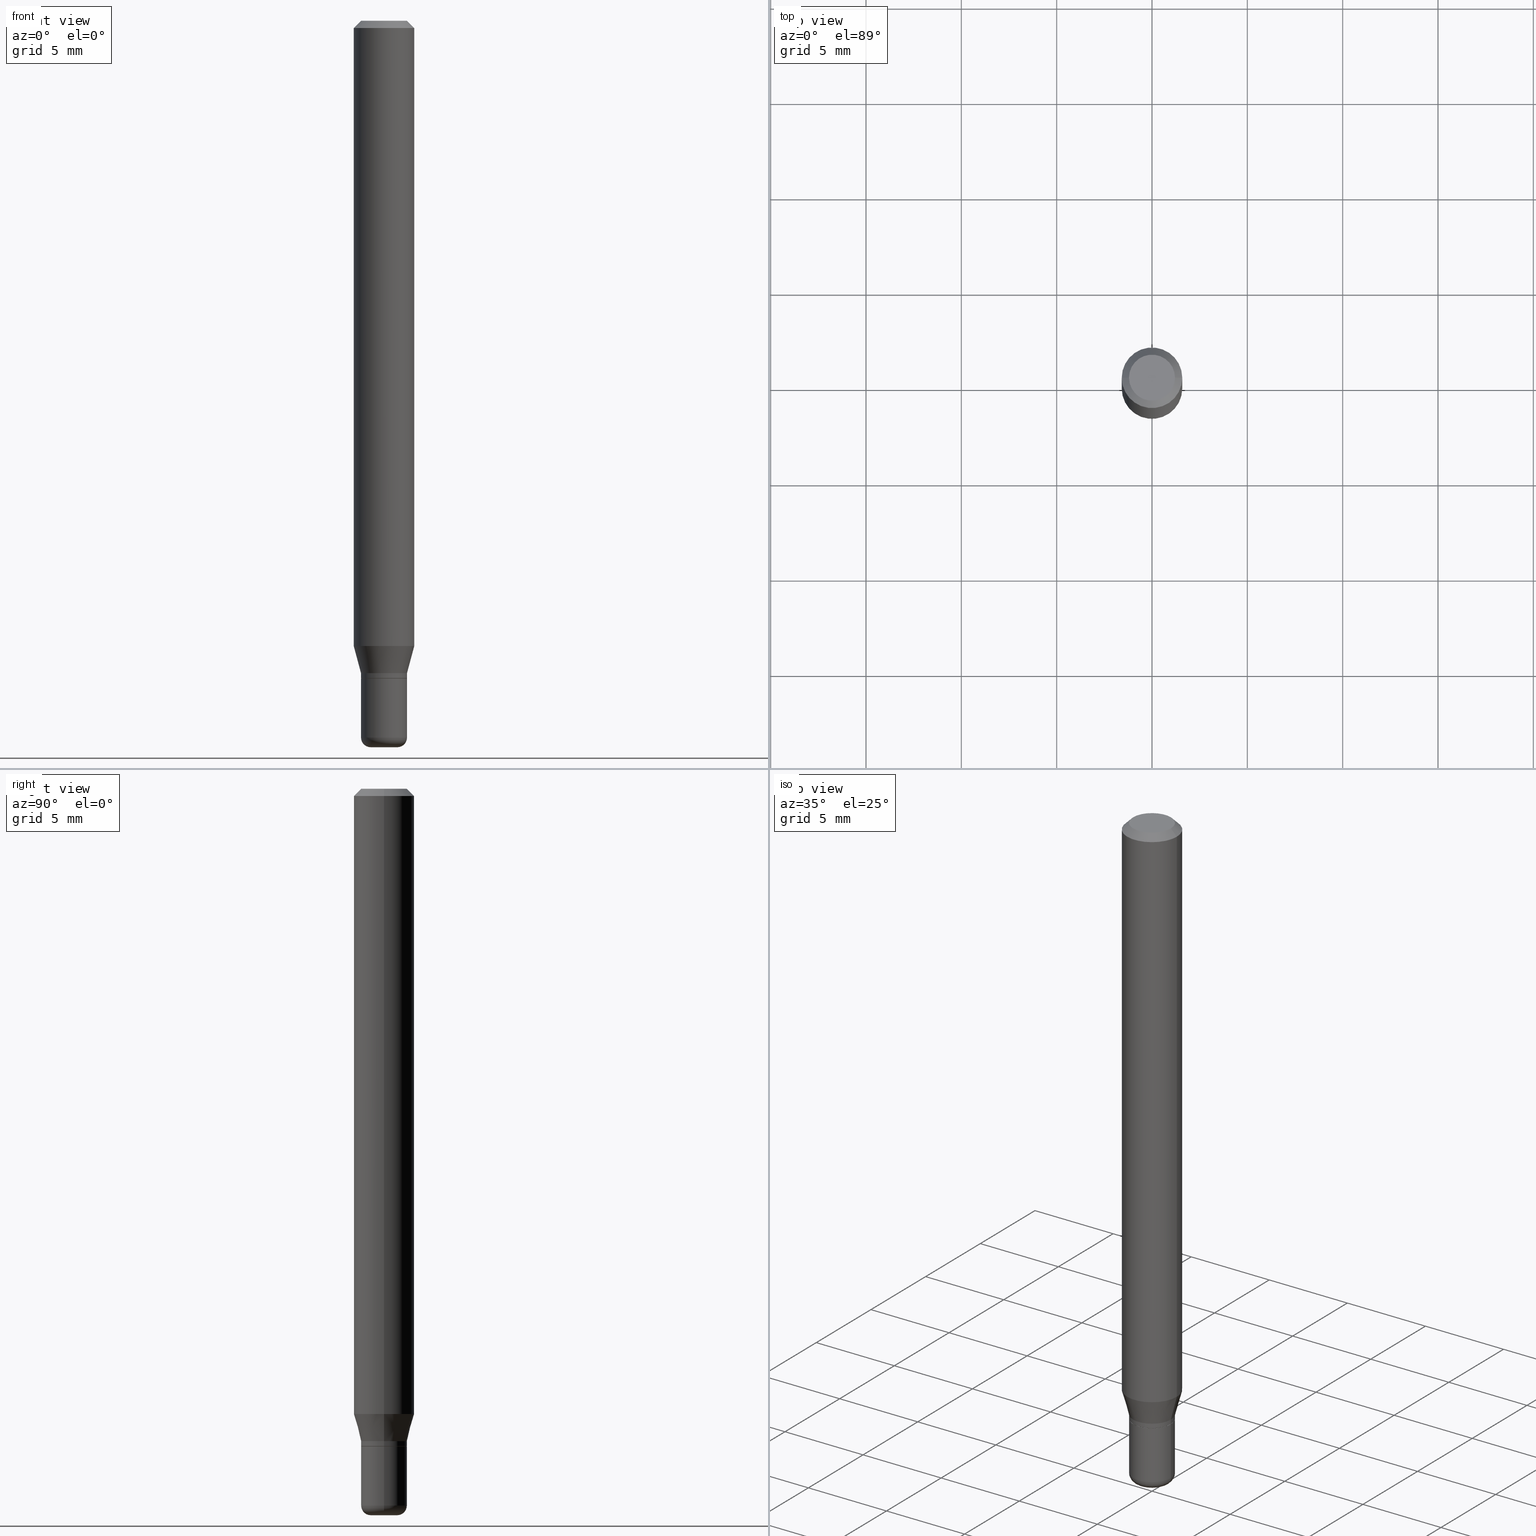
[diagram: canonical four-view strip — front | top / right | iso, engineering-drawing reading convention]
A machine part, canonical four-view strip (front | top / right | iso — engineering-drawing reading convention). The complete STEP part file that produces these views, byte-faithful:
ISO-10303-21;
HEADER;
FILE_DESCRIPTION (( 'STEP AP203' ),
    '1' );
FILE_NAME ('08730.STEP',
    '2024-02-29T20:39:32',
    ( '' ),
    ( '' ),
    'SwSTEP 2.0',
    'SolidWorks 2023',
    '' );
FILE_SCHEMA (( 'CONFIG_CONTROL_DESIGN' ));
ENDSEC;

DATA;
#1 = VERTEX_POINT ( 'NONE', #51 ) ;
#2 = CARTESIAN_POINT ( 'NONE',  ( 3.157147274436263643E-29, -4.507569577168099864E-15, -1.291019237886467108 ) ) ;
#3 = PERSON_AND_ORGANIZATION ( #485, #305 ) ;
#4 = ADVANCED_FACE ( 'NONE', ( #223 ), #147, .F. ) ;
#5 = VERTEX_POINT ( 'NONE', #371 ) ;
#6 = CARTESIAN_POINT ( 'NONE',  ( 3.619293833154002365E-29, -5.167392381487854879E-15, -1.479999999999999982 ) ) ;
#7 = VECTOR ( 'NONE', #515, 39.37007874015748143 ) ;
#8 = FACE_OUTER_BOUND ( 'NONE', #235, .T. ) ;
#9 = ADVANCED_FACE ( 'NONE', ( #445 ), #11, .T. ) ;
#10 = DIRECTION ( 'NONE',  ( -2.445468806185136877E-29, 3.491481338843145188E-15, 1.000000000000000000 ) ) ;
#11 = CYLINDRICAL_SURFACE ( 'NONE', #173, 0.04750000000000000749 ) ;
#12 = CIRCLE ( 'NONE', #302, 0.04749999999999999362 ) ;
#13 = AXIS2_PLACEMENT_3D ( 'NONE', #58, #14, #183 ) ;
#14 = DIRECTION ( 'NONE',  ( -2.445468806185136597E-29, 3.491481338843145583E-15, 1.000000000000000000 ) ) ;
#15 = LOCAL_TIME ( 15, 39, 32.00000000000000000, #280 ) ;
#16 = EDGE_CURVE ( 'NONE', #499, #326, #12, .T. ) ;
#17 = ORIENTED_EDGE ( 'NONE', *, *, #114, .T. ) ;
#18 = CARTESIAN_POINT ( 'NONE',  ( 3.668203209277632395E-31, -5.237222008264614861E-17, -0.01499999999999970281 ) ) ;
#19 = DIRECTION ( 'NONE',  ( 1.000000000000000000, -6.982962677686258033E-15, 0.000000000000000000 ) ) ;
#20 = AXIS2_PLACEMENT_3D ( 'NONE', #297, #103, #372 ) ;
#21 = EDGE_CURVE ( 'NONE', #518, #510, #458, .T. ) ;
#22 = CARTESIAN_POINT ( 'NONE',  ( 0.02749999999999999667, -5.359423855124228160E-15, -1.479999999999999982 ) ) ;
#23 = DIRECTION ( 'NONE',  ( 1.000000000000000000, -6.982962677686260400E-15, 0.000000000000000000 ) ) ;
#24 = PRODUCT_DEFINITION ( 'UNKNOWN', '', #343, #339 ) ;
#25 = ORIENTED_EDGE ( 'NONE', *, *, #300, .F. ) ;
#26 = PRODUCT ( '08730', '08730', '', ( #120 ) ) ;
#27 = PERSON_AND_ORGANIZATION ( #485, #305 ) ;
#28 = AXIS2_PLACEMENT_3D ( 'NONE', #189, #418, #196 ) ;
#29 = CARTESIAN_POINT ( 'NONE',  ( 3.319723904396323737E-29, -4.739685917479570727E-15, -1.357500000000000151 ) ) ;
#30 = CC_DESIGN_SECURITY_CLASSIFICATION ( #508, ( #343 ) ) ;
#31 = ORIENTED_EDGE ( 'NONE', *, *, #308, .T. ) ;
#32 = ADVANCED_FACE ( 'NONE', ( #180 ), #453, .F. ) ;
#33 = APPLICATION_PROTOCOL_DEFINITION ( 'international standard', 'config_control_design', 1994, #66 ) ;
#34 = CARTESIAN_POINT ( 'NONE',  ( -0.04700000000000000705, -4.403081604498212142E-15, -1.357500000000000151 ) ) ;
#35 = DIRECTION ( 'NONE',  ( -2.445468806185136597E-29, 3.491481338843145583E-15, 1.000000000000000000 ) ) ;
#36 = ORIENTED_EDGE ( 'NONE', *, *, #498, .T. ) ;
#37 = DIRECTION ( 'NONE',  ( 1.000000000000000000, -6.982962677686258033E-15, 0.000000000000000000 ) ) ;
#38 = EDGE_LOOP ( 'NONE', ( #150, #393, #366, #504 ) ) ;
#39 = LINE ( 'NONE', #307, #420 ) ;
#40 = EDGE_CURVE ( 'NONE', #415, #47, #73, .T. ) ;
#41 = APPROVAL_STATUS ( 'not_yet_approved' ) ;
#42 = AXIS2_PLACEMENT_3D ( 'NONE', #330, #184, #186 ) ;
#43 = CIRCLE ( 'NONE', #482, 0.04749999999999999362 ) ;
#44 = CARTESIAN_POINT ( 'NONE',  ( 0.06250000000000000000, -4.944004744523489955E-15, -1.291019237886467108 ) ) ;
#45 = ORIENTED_EDGE ( 'NONE', *, *, #59, .F. ) ;
#46 = ORIENTED_EDGE ( 'NONE', *, *, #60, .T. ) ;
#47 = VERTEX_POINT ( 'NONE', #493 ) ;
#48 = EDGE_LOOP ( 'NONE', ( #45, #354, #91, #193 ) ) ;
#49 = DIRECTION ( 'NONE',  ( -0.7071067811865479058, 2.468850131082261005E-15, -0.7071067811865471286 ) ) ;
#50 = AXIS2_PLACEMENT_3D ( 'NONE', #402, #291, #322 ) ;
#51 = CARTESIAN_POINT ( 'NONE',  ( 0.04750000000000000749, -4.035134999187568762E-16, 2.731847993664288856E-16 ) ) ;
#52 = CC_DESIGN_PERSON_AND_ORGANIZATION_ASSIGNMENT ( #351, #161, ( #343 ) ) ;
#53 = CYLINDRICAL_SURFACE ( 'NONE', #13, 0.06250000000000000000 ) ;
#54 = CARTESIAN_POINT ( 'NONE',  ( 0.000000000000000000, 0.000000000000000000, 0.000000000000000000 ) ) ;
#55 = DIMENSIONAL_EXPONENTS ( 1.000000000000000000, 0.000000000000000000, 0.000000000000000000, 0.000000000000000000, 0.000000000000000000, 0.000000000000000000, 0.000000000000000000 ) ;
#56 = CARTESIAN_POINT ( 'NONE',  ( 0.04750000000000002137, -5.034716090611815085E-15, -1.347000000000000197 ) ) ;
#57 = EDGE_LOOP ( 'NONE', ( #242, #355, #425, #321 ) ) ;
#58 = CARTESIAN_POINT ( 'NONE',  ( 0.000000000000000000, 0.000000000000000000, 0.000000000000000000 ) ) ;
#59 = EDGE_CURVE ( 'NONE', #1, #82, #448, .T. ) ;
#60 = EDGE_CURVE ( 'NONE', #447, #415, #407, .T. ) ;
#61 = AXIS2_PLACEMENT_3D ( 'NONE', #156, #313, #203 ) ;
#62 = DIRECTION ( 'NONE',  ( -2.445468806185136597E-29, 3.491481338843145583E-15, 1.000000000000000000 ) ) ;
#63 = DIRECTION ( 'NONE',  ( -2.445468806185136597E-29, 3.491481338843145583E-15, 1.000000000000000000 ) ) ;
#64 = CIRCLE ( 'NONE', #236, 0.04750000000000002137 ) ;
#65 = CIRCLE ( 'NONE', #224, 0.04750000000000000749 ) ;
#66 = APPLICATION_CONTEXT ( 'configuration controlled 3d designs of mechanical parts and assemblies' ) ;
#67 = DIRECTION ( 'NONE',  ( -2.445468806185136597E-29, 3.491481338843145583E-15, 1.000000000000000000 ) ) ;
#68 = CARTESIAN_POINT ( 'NONE',  ( 0.04750000000000002137, -5.499083108677952390E-15, -1.479999999999999982 ) ) ;
#69 = ORIENTED_EDGE ( 'NONE', *, *, #226, .F. ) ;
#70 = CARTESIAN_POINT ( 'NONE',  ( 3.582686580359766038E-29, -5.359686688179453325E-15, -1.500000000000000222 ) ) ;
#71 = CC_DESIGN_DATE_AND_TIME_ASSIGNMENT ( #430, #87, ( #508 ) ) ;
#72 = EDGE_LOOP ( 'NONE', ( #238, #17, #396, #350 ) ) ;
#73 = CIRCLE ( 'NONE', #145, 0.04750000000000002137 ) ;
#74 = AXIS2_PLACEMENT_3D ( 'NONE', #29, #507, #85 ) ;
#75 = CALENDAR_DATE ( 2024, 29, 2 ) ;
#76 = APPROVAL_PERSON_ORGANIZATION ( #252, #172, #417 ) ;
#77 = FACE_OUTER_BOUND ( 'NONE', #123, .T. ) ;
#78 = VERTEX_POINT ( 'NONE', #327 ) ;
#79 = PERSON_AND_ORGANIZATION ( #485, #305 ) ;
#80 = DIRECTION ( 'NONE',  ( 1.000000000000000000, -6.982962677686279332E-15, 0.000000000000000000 ) ) ;
#81 = ORIENTED_EDGE ( 'NONE', *, *, #414, .F. ) ;
#82 = VERTEX_POINT ( 'NONE', #260 ) ;
#83 = DIRECTION ( 'NONE',  ( -2.445468806185136597E-29, 3.491481338843145583E-15, 1.000000000000000000 ) ) ;
#84 = EDGE_CURVE ( 'NONE', #510, #499, #401, .T. ) ;
#85 = DIRECTION ( 'NONE',  ( 1.000000000000000000, -6.982962677686269866E-15, 0.000000000000000000 ) ) ;
#86 = ORIENTED_EDGE ( 'NONE', *, *, #318, .T. ) ;
#87 = DATE_TIME_ROLE ( 'classification_date' ) ;
#88 = ADVANCED_FACE ( 'NONE', ( #227 ), #500, .T. ) ;
#89 = CIRCLE ( 'NONE', #380, 0.06250000000000000000 ) ;
#90 = DIRECTION ( 'NONE',  ( 1.000000000000000000, -6.982962677686258033E-15, 0.000000000000000000 ) ) ;
#91 = ORIENTED_EDGE ( 'NONE', *, *, #332, .T. ) ;
#92 = APPLICATION_CONTEXT ( 'configuration controlled 3d designs of mechanical parts and assemblies' ) ;
#93 = CARTESIAN_POINT ( 'NONE',  ( 3.294046481931379390E-29, -4.703025363421717574E-15, -1.347000000000000197 ) ) ;
#94 = EDGE_LOOP ( 'NONE', ( #294, #214 ) ) ;
#95 = CARTESIAN_POINT ( 'NONE',  ( 3.668203209277632395E-31, -5.237222008264614861E-17, -0.01499999999999970281 ) ) ;
#96 = CYLINDRICAL_SURFACE ( 'NONE', #341, 0.04750000000000001443 ) ;
#97 = ORIENTED_EDGE ( 'NONE', *, *, #361, .T. ) ;
#98 = ADVANCED_FACE ( 'NONE', ( #177 ), #113, .T. ) ;
#99 = CARTESIAN_POINT ( 'NONE',  ( 3.294046481931379390E-29, -4.703025363421717574E-15, -1.347000000000000197 ) ) ;
#100 = DIRECTION ( 'NONE',  ( -2.445468806185136597E-29, 3.491481338843145583E-15, 1.000000000000000000 ) ) ;
#101 = AXIS2_PLACEMENT_3D ( 'NONE', #264, #62, #107 ) ;
#102 = ORIENTED_EDGE ( 'NONE', *, *, #514, .T. ) ;
#103 = DIRECTION ( 'NONE',  ( -2.438088387897960049E-29, 3.491481338843145188E-15, 1.000000000000000000 ) ) ;
#104 = DIRECTION ( 'NONE',  ( 1.000000000000000000, -6.982962677686266711E-15, 4.852736867747365086E-29 ) ) ;
#105 = APPROVAL_STATUS ( 'not_yet_approved' ) ;
#106 = EDGE_CURVE ( 'NONE', #197, #163, #225, .T. ) ;
#107 = DIRECTION ( 'NONE',  ( 1.000000000000000000, -6.982962677686269866E-15, 0.000000000000000000 ) ) ;
#108 = AXIS2_PLACEMENT_3D ( 'NONE', #386, #475, #80 ) ;
#109 = CARTESIAN_POINT ( 'NONE',  ( -0.04750000000000001443, 3.375077994860476908E-16, -2.336494167871080961E-30 ) ) ;
#110 = EDGE_CURVE ( 'NONE', #163, #47, #457, .T. ) ;
#111 =( LENGTH_UNIT ( ) NAMED_UNIT ( * ) SI_UNIT ( $, .METRE. ) );
#112 = FACE_OUTER_BOUND ( 'NONE', #484, .T. ) ;
#113 = CONICAL_SURFACE ( 'NONE', #101, 0.04700000000000000705, 0.7853981633972775267 ) ;
#114 = EDGE_CURVE ( 'NONE', #47, #381, #412, .T. ) ;
#115 = FACE_OUTER_BOUND ( 'NONE', #48, .T. ) ;
#116 = EDGE_LOOP ( 'NONE', ( #383, #241 ) ) ;
#117 = CARTESIAN_POINT ( 'NONE',  ( 0.06250000000000000000, -4.364351673553916694E-16, 3.047610484872459871E-30 ) ) ;
#118 = EDGE_LOOP ( 'NONE', ( #167, #211, #468, #69 ) ) ;
#119 = AXIS2_PLACEMENT_3D ( 'NONE', #455, #191, #502 ) ;
#120 = MECHANICAL_CONTEXT ( 'NONE', #66, 'mechanical' ) ;
#121 = DIRECTION ( 'NONE',  ( -2.445468806185136597E-29, 3.491481338843145583E-15, 1.000000000000000000 ) ) ;
#122 = ADVANCED_FACE ( 'NONE', ( #295 ), #53, .T. ) ;
#123 = EDGE_LOOP ( 'NONE', ( #440, #444, #46, #254 ) ) ;
#124 = EDGE_CURVE ( 'NONE', #447, #163, #207, .T. ) ;
#125 = CARTESIAN_POINT ( 'NONE',  ( -0.04750000000000000749, -4.400432377324100941E-15, -1.356999999999999984 ) ) ;
#126 = ORIENTED_EDGE ( 'NONE', *, *, #361, .F. ) ;
#127 = CC_DESIGN_PERSON_AND_ORGANIZATION_ASSIGNMENT ( #513, #199, ( #26 ) ) ;
#128 = FACE_OUTER_BOUND ( 'NONE', #38, .T. ) ;
#129 = ORIENTED_EDGE ( 'NONE', *, *, #106, .T. ) ;
#130 = ORIENTED_EDGE ( 'NONE', *, *, #300, .T. ) ;
#131 = COORDINATED_UNIVERSAL_TIME_OFFSET ( 5, 0, .BEHIND. ) ;
#132 = CLOSED_SHELL ( 'NONE', ( #285, #221, #32, #9, #438, #152 ) ) ;
#133 = VECTOR ( 'NONE', #169, 39.37007874015748143 ) ;
#134 = AXIS2_PLACEMENT_3D ( 'NONE', #22, #461, #188 ) ;
#135 = APPROVAL_DATE_TIME ( #141, #439 ) ;
#136 = CC_DESIGN_DATE_AND_TIME_ASSIGNMENT ( #158, #323, ( #24 ) ) ;
#137 = LINE ( 'NONE', #262, #460 ) ;
#138 = DIRECTION ( 'NONE',  ( -0.2588190451025204619, 5.211531920934543942E-15, 0.9659258262890684232 ) ) ;
#139 = CONICAL_SURFACE ( 'NONE', #277, 0.04750000000000002137, 0.2617993877991491303 ) ;
#140 = DIRECTION ( 'NONE',  ( -2.445468806185136597E-29, 3.491481338843145583E-15, 1.000000000000000000 ) ) ;
#141 = DATE_AND_TIME ( #397, #194 ) ;
#142 = DIRECTION ( 'NONE',  ( 2.438088387897960049E-29, -3.491481338843145188E-15, -1.000000000000000000 ) ) ;
#143 = CARTESIAN_POINT ( 'NONE',  ( 3.319723904396323737E-29, -4.739685917479570727E-15, -1.357500000000000151 ) ) ;
#144 = DIRECTION ( 'NONE',  ( 1.000000000000000000, -6.982962677686261977E-15, 0.000000000000000000 ) ) ;
#145 = AXIS2_PLACEMENT_3D ( 'NONE', #99, #220, #451 ) ;
#146 = AXIS2_PLACEMENT_3D ( 'NONE', #348, #162, #234 ) ;
#147 = PLANE ( 'NONE',  #20 ) ;
#148 = EDGE_CURVE ( 'NONE', #415, #347, #39, .T. ) ;
#149 = UNCERTAINTY_MEASURE_WITH_UNIT (LENGTH_MEASURE( 1.000000000000000082E-05 ), #154, 'distance_accuracy_value', 'NONE');
#150 = ORIENTED_EDGE ( 'NONE', *, *, #268, .T. ) ;
#151 = AXIS2_PLACEMENT_3D ( 'NONE', #435, #83, #399 ) ;
#152 = ADVANCED_FACE ( 'NONE', ( #112 ), #228, .F. ) ;
#153 = CC_DESIGN_APPROVAL ( #172, ( #24 ) ) ;
#154 =( CONVERSION_BASED_UNIT ( 'INCH', #272 ) LENGTH_UNIT ( ) NAMED_UNIT ( #55 ) );
#155 = PERSON_AND_ORGANIZATION ( #485, #305 ) ;
#156 = CARTESIAN_POINT ( 'NONE',  ( -0.02749999999999999667, -4.971993129153827548E-15, -1.479999999999999982 ) ) ;
#157 = EDGE_CURVE ( 'NONE', #197, #282, #392, .T. ) ;
#158 = DATE_AND_TIME ( #75, #15 ) ;
#159 = ORIENTED_EDGE ( 'NONE', *, *, #60, .F. ) ;
#160 = AXIS2_PLACEMENT_3D ( 'NONE', #267, #140, #19 ) ;
#161 = PERSON_AND_ORGANIZATION_ROLE ( 'creator' ) ;
#162 = DIRECTION ( 'NONE',  ( -2.445468806185136597E-29, 3.491481338843145583E-15, 1.000000000000000000 ) ) ;
#163 = VERTEX_POINT ( 'NONE', #125 ) ;
#164 = MANIFOLD_SOLID_BREP ( 'Body-Move/Copy2[2]', #379 ) ;
#165 = PERSON_AND_ORGANIZATION_ROLE ( 'classification_officer' ) ;
#166 = CARTESIAN_POINT ( 'NONE',  ( 3.668203209277632395E-31, -5.237222008264614861E-17, -0.01499999999999970281 ) ) ;
#167 = ORIENTED_EDGE ( 'NONE', *, *, #377, .F. ) ;
#168 = PERSON_AND_ORGANIZATION_ROLE ( 'creator' ) ;
#169 = DIRECTION ( 'NONE',  ( -2.445468806185136877E-29, 3.491481338843145188E-15, 1.000000000000000000 ) ) ;
#170 = ORIENTED_EDGE ( 'NONE', *, *, #124, .T. ) ;
#171 = DIRECTION ( 'NONE',  ( 1.000000000000000000, -6.982962677686266711E-15, 0.000000000000000000 ) ) ;
#172 = APPROVAL ( #41, 'UNSPECIFIED' ) ;
#173 = AXIS2_PLACEMENT_3D ( 'NONE', #263, #63, #369 ) ;
#174 = AXIS2_PLACEMENT_3D ( 'NONE', #443, #178, #362 ) ;
#175 = DIRECTION ( 'NONE',  ( 1.000000000000000000, -6.982962677686266711E-15, 4.876176775795935793E-29 ) ) ;
#176 = DIRECTION ( 'NONE',  ( -2.445468806185136597E-29, 3.491481338843145583E-15, 1.000000000000000000 ) ) ;
#177 = FACE_OUTER_BOUND ( 'NONE', #516, .T. ) ;
#178 = DIRECTION ( 'NONE',  ( -2.445468806185136597E-29, 3.491481338843145583E-15, 1.000000000000000000 ) ) ;
#179 = ADVANCED_FACE ( 'NONE', ( #115 ), #337, .T. ) ;
#180 = FACE_OUTER_BOUND ( 'NONE', #116, .T. ) ;
#181 = ADVANCED_BREP_SHAPE_REPRESENTATION ( '08730', ( #328, #164, #316 ), #411 ) ;
#182 = CIRCLE ( 'NONE', #230, 0.06250000000000000000 ) ;
#183 = DIRECTION ( 'NONE',  ( 1.000000000000000000, -6.982962677686266711E-15, 4.876176775795935793E-29 ) ) ;
#184 = DIRECTION ( 'NONE',  ( 2.438088387897960049E-29, -3.491481338843145188E-15, -1.000000000000000000 ) ) ;
#185 = DIRECTION ( 'NONE',  ( -2.445468806185136597E-29, 3.491481338843145583E-15, 1.000000000000000000 ) ) ;
#186 = DIRECTION ( 'NONE',  ( -1.000000000000000000, 6.982962677686265922E-15, -4.876176775795935793E-29 ) ) ;
#187 = AXIS2_PLACEMENT_3D ( 'NONE', #245, #35, #253 ) ;
#188 = DIRECTION ( 'NONE',  ( 1.000000000000000000, -6.982962677686275388E-15, 0.000000000000000000 ) ) ;
#189 = CARTESIAN_POINT ( 'NONE',  ( 3.668203209277632395E-31, -5.237222008264614861E-17, -0.01499999999999970281 ) ) ;
#190 = EDGE_CURVE ( 'NONE', #324, #510, #374, .T. ) ;
#191 = DIRECTION ( 'NONE',  ( -2.445468806185136597E-29, 3.491481338843145583E-15, 1.000000000000000000 ) ) ;
#192 = DIRECTION ( 'NONE',  ( 1.000000000000000000, -6.982962677686265922E-15, 4.876176775795935793E-29 ) ) ;
#193 = ORIENTED_EDGE ( 'NONE', *, *, #249, .F. ) ;
#194 = LOCAL_TIME ( 15, 39, 32.00000000000000000, #370 ) ;
#195 = DIRECTION ( 'NONE',  ( 0.000000000000000000, 0.000000000000000000, 1.000000000000000000 ) ) ;
#196 = DIRECTION ( 'NONE',  ( -1.000000000000000000, 6.982962677686266711E-15, 0.000000000000000000 ) ) ;
#197 = VERTEX_POINT ( 'NONE', #34 ) ;
#198 = ADVANCED_FACE ( 'NONE', ( #469 ), #312, .T. ) ;
#199 = PERSON_AND_ORGANIZATION_ROLE ( 'design_owner' ) ;
#200 = CARTESIAN_POINT ( 'NONE',  ( 0.04749999999999999362, -5.071376644669668238E-15, -1.357500000000000151 ) ) ;
#201 = ORIENTED_EDGE ( 'NONE', *, *, #239, .T. ) ;
#202 = DIRECTION ( 'NONE',  ( 1.000000000000000000, 0.000000000000000000, 0.000000000000000000 ) ) ;
#203 = DIRECTION ( 'NONE',  ( -1.000000000000000000, 7.105427357601014480E-15, 0.000000000000000000 ) ) ;
#204 = CARTESIAN_POINT ( 'NONE',  ( -0.02750000000000000014, -4.935853668966249905E-15, -1.500000000000000222 ) ) ;
#205 = ORIENTED_EDGE ( 'NONE', *, *, #190, .T. ) ;
#206 = CARTESIAN_POINT ( 'NONE',  ( -0.06250000000000000000, 3.840629472727455270E-16, -0.01499999999999970281 ) ) ;
#207 = CIRCLE ( 'NONE', #506, 0.04750000000000000749 ) ;
#208 = PERSON_AND_ORGANIZATION_ROLE ( 'design_supplier' ) ;
#209 = DIRECTION ( 'NONE',  ( 1.000000000000000000, -6.982962677686258033E-15, 0.000000000000000000 ) ) ;
#210 = ORIENTED_EDGE ( 'NONE', *, *, #239, .F. ) ;
#211 = ORIENTED_EDGE ( 'NONE', *, *, #421, .T. ) ;
#212 = PERSON_AND_ORGANIZATION ( #485, #305 ) ;
#213 = CARTESIAN_POINT ( 'NONE',  ( 0.04750000000000000749, -3.316907271900977082E-16, 2.316183968503069432E-30 ) ) ;
#214 = ORIENTED_EDGE ( 'NONE', *, *, #157, .F. ) ;
#215 = TOROIDAL_SURFACE ( 'NONE', #296, 0.02749999999999999667, 0.02000000000000002470 ) ;
#216 = ORIENTED_EDGE ( 'NONE', *, *, #40, .F. ) ;
#217 = CARTESIAN_POINT ( 'NONE',  ( -0.04750000000000000749, 3.375077994860476415E-16, -2.336494167871080260E-30 ) ) ;
#218 = ADVANCED_FACE ( 'NONE', ( #77 ), #96, .T. ) ;
#219 = ORIENTED_EDGE ( 'NONE', *, *, #157, .T. ) ;
#220 = DIRECTION ( 'NONE',  ( -2.445468806185136597E-29, 3.491481338843145583E-15, 1.000000000000000000 ) ) ;
#221 = ADVANCED_FACE ( 'NONE', ( #8 ), #284, .T. ) ;
#222 = CARTESIAN_POINT ( 'NONE',  ( 3.316907271900976589E-16, 0.04750000000000000749, -2.925296391183627249E-17 ) ) ;
#223 = FACE_OUTER_BOUND ( 'NONE', #94, .T. ) ;
#224 = AXIS2_PLACEMENT_3D ( 'NONE', #376, #185, #23 ) ;
#225 = LINE ( 'NONE', #497, #269 ) ;
#226 = EDGE_CURVE ( 'NONE', #479, #5, #182, .T. ) ;
#227 = FACE_OUTER_BOUND ( 'NONE', #434, .T. ) ;
#228 = PLANE ( 'NONE',  #449 ) ;
#229 = VECTOR ( 'NONE', #496, 39.37007874015748143 ) ;
#230 = AXIS2_PLACEMENT_3D ( 'NONE', #95, #255, #171 ) ;
#231 = DIRECTION ( 'NONE',  ( 1.000000000000000000, -6.982962677686269866E-15, 0.000000000000000000 ) ) ;
#232 = DIRECTION ( 'NONE',  ( 1.000000000000000000, -6.982962677686260400E-15, 0.000000000000000000 ) ) ;
#233 = ORIENTED_EDGE ( 'NONE', *, *, #318, .F. ) ;
#234 = DIRECTION ( 'NONE',  ( 1.000000000000000000, -6.982962677686266711E-15, 4.876176775795935793E-29 ) ) ;
#235 = EDGE_LOOP ( 'NONE', ( #416, #283, #81, #126 ) ) ;
#236 = AXIS2_PLACEMENT_3D ( 'NONE', #6, #121, #37 ) ;
#237 = AXIS2_PLACEMENT_3D ( 'NONE', #317, #390, #175 ) ;
#238 = ORIENTED_EDGE ( 'NONE', *, *, #40, .T. ) ;
#239 = EDGE_CURVE ( 'NONE', #324, #78, #517, .T. ) ;
#240 = APPLICATION_PROTOCOL_DEFINITION ( 'international standard', 'config_control_design', 1994, #92 ) ;
#241 = ORIENTED_EDGE ( 'NONE', *, *, #16, .T. ) ;
#242 = ORIENTED_EDGE ( 'NONE', *, *, #426, .F. ) ;
#243 = LINE ( 'NONE', #206, #247 ) ;
#244 = DATE_AND_TIME ( #385, #382 ) ;
#245 = CARTESIAN_POINT ( 'NONE',  ( -6.680649051745406845E-45, 9.538196290434862081E-31, 2.731847993664263218E-16 ) ) ;
#246 = ORIENTED_EDGE ( 'NONE', *, *, #488, .F. ) ;
#247 = VECTOR ( 'NONE', #49, 39.37007874015748143 ) ;
#248 = CALENDAR_DATE ( 2024, 29, 2 ) ;
#249 = EDGE_CURVE ( 'NONE', #82, #479, #243, .T. ) ;
#250 = EDGE_LOOP ( 'NONE', ( #429, #130, #97, #487 ) ) ;
#251 = CARTESIAN_POINT ( 'NONE',  ( 3.619293833154002365E-29, -5.167392381487854879E-15, -1.479999999999999982 ) ) ;
#252 = PERSON_AND_ORGANIZATION ( #485, #305 ) ;
#253 = DIRECTION ( 'NONE',  ( 1.000000000000000000, -6.982962677686266711E-15, 4.852736867747365086E-29 ) ) ;
#254 = ORIENTED_EDGE ( 'NONE', *, *, #462, .F. ) ;
#255 = DIRECTION ( 'NONE',  ( -2.445468806185136597E-29, 3.491481338843145583E-15, 1.000000000000000000 ) ) ;
#256 = DIRECTION ( 'NONE',  ( -2.445468806185136597E-29, 3.491481338843145583E-15, 1.000000000000000000 ) ) ;
#257 = TOROIDAL_SURFACE ( 'NONE', #174, 0.02749999999999999667, 0.02000000000000002470 ) ;
#258 = VECTOR ( 'NONE', #338, 39.37007874015748143 ) ;
#259 = FACE_OUTER_BOUND ( 'NONE', #276, .T. ) ;
#260 = CARTESIAN_POINT ( 'NONE',  ( -0.04750000000000000749, 3.578768372314221353E-16, 2.731847993664239060E-16 ) ) ;
#261 = APPROVAL_ROLE ( '' ) ;
#262 = CARTESIAN_POINT ( 'NONE',  ( 0.06250000000000000000, -4.811533449433669144E-16, -0.01499999999999970281 ) ) ;
#263 = CARTESIAN_POINT ( 'NONE',  ( 0.000000000000000000, 0.000000000000000000, 0.000000000000000000 ) ) ;
#264 = CARTESIAN_POINT ( 'NONE',  ( 3.319723904396323737E-29, -4.739685917479570727E-15, -1.357500000000000151 ) ) ;
#265 = AXIS2_PLACEMENT_3D ( 'NONE', #452, #495, #408 ) ;
#266 = CIRCLE ( 'NONE', #134, 0.02000000000000002470 ) ;
#267 = CARTESIAN_POINT ( 'NONE',  ( 3.619293833154002365E-29, -5.167392381487854879E-15, -1.479999999999999982 ) ) ;
#268 = EDGE_CURVE ( 'NONE', #347, #381, #325, .T. ) ;
#269 = VECTOR ( 'NONE', #301, 39.37007874015748143 ) ;
#270 = CONICAL_SURFACE ( 'NONE', #470, 0.06250000000000000000, 0.7853981633974488341 ) ;
#271 = CC_DESIGN_PERSON_AND_ORGANIZATION_ASSIGNMENT ( #155, #208, ( #343 ) ) ;
#272 = LENGTH_MEASURE_WITH_UNIT ( LENGTH_MEASURE( 0.02539999999999999897 ), #111 );
#273 =( NAMED_UNIT ( * ) PLANE_ANGLE_UNIT ( ) SI_UNIT ( $, .RADIAN. ) );
#274 = ORIENTED_EDGE ( 'NONE', *, *, #505, .F. ) ;
#275 = FACE_OUTER_BOUND ( 'NONE', #57, .T. ) ;
#276 = EDGE_LOOP ( 'NONE', ( #473, #201, #102, #25 ) ) ;
#277 = AXIS2_PLACEMENT_3D ( 'NONE', #428, #424, #90 ) ;
#278 = APPROVAL_STATUS ( 'not_yet_approved' ) ;
#279 = ORIENTED_EDGE ( 'NONE', *, *, #110, .T. ) ;
#280 = COORDINATED_UNIVERSAL_TIME_OFFSET ( 5, 0, .BEHIND. ) ;
#281 = DIRECTION ( 'NONE',  ( -2.445468806185136597E-29, 3.491481338843145583E-15, 1.000000000000000000 ) ) ;
#282 = VERTEX_POINT ( 'NONE', #319 ) ;
#283 = ORIENTED_EDGE ( 'NONE', *, *, #84, .T. ) ;
#284 = CYLINDRICAL_SURFACE ( 'NONE', #50, 0.04750000000000000749 ) ;
#285 = ADVANCED_FACE ( 'NONE', ( #476 ), #215, .T. ) ;
#286 = APPROVAL_DATE_TIME ( #289, #172 ) ;
#287 = DIRECTION ( 'NONE',  ( 1.000000000000000000, -6.982962677686258033E-15, 4.883557194083110098E-29 ) ) ;
#288 = CONICAL_SURFACE ( 'NONE', #492, 0.04750000000000002137, 0.2617993877991491303 ) ;
#289 = DATE_AND_TIME ( #248, #433 ) ;
#290 = EDGE_LOOP ( 'NONE', ( #31, #441 ) ) ;
#291 = DIRECTION ( 'NONE',  ( -2.445468806185136597E-29, 3.491481338843145583E-15, 1.000000000000000000 ) ) ;
#292 = SHAPE_DEFINITION_REPRESENTATION ( #315, #181 ) ;
#293 = DIRECTION ( 'NONE',  ( 0.7071067811865479058, -7.319954787623257623E-15, -0.7071067811865471286 ) ) ;
#294 = ORIENTED_EDGE ( 'NONE', *, *, #498, .F. ) ;
#295 = FACE_OUTER_BOUND ( 'NONE', #118, .T. ) ;
#296 = AXIS2_PLACEMENT_3D ( 'NONE', #251, #509, #287 ) ;
#297 = CARTESIAN_POINT ( 'NONE',  ( 3.319723904396323737E-29, -4.739685917479570727E-15, -1.357500000000000151 ) ) ;
#298 = DIRECTION ( 'NONE',  ( -1.000000000000000000, 6.982962677686265922E-15, -4.876176775795935793E-29 ) ) ;
#299 = DIRECTION ( 'NONE',  ( -2.445468806185136597E-29, 3.491481338843145583E-15, 1.000000000000000000 ) ) ;
#300 = EDGE_CURVE ( 'NONE', #510, #518, #64, .T. ) ;
#301 = DIRECTION ( 'NONE',  ( -0.7071067811864267805, 7.493145998869918709E-15, 0.7071067811866682540 ) ) ;
#302 = AXIS2_PLACEMENT_3D ( 'NONE', #143, #299, #144 ) ;
#303 = CARTESIAN_POINT ( 'NONE',  ( -0.04749999999999999362, -4.616031349997665704E-15, -1.357500000000000151 ) ) ;
#304 = VECTOR ( 'NONE', #138, 39.37007874015748854 ) ;
#305 = ORGANIZATION ( 'UNSPECIFIED', 'UNSPECIFIED', '' ) ;
#306 = CARTESIAN_POINT ( 'NONE',  ( 0.04700000000000000705, -5.067885163330825231E-15, -1.357500000000000151 ) ) ;
#307 = CARTESIAN_POINT ( 'NONE',  ( 0.04750000000000002137, -5.034716090611815085E-15, -1.347000000000000197 ) ) ;
#308 = EDGE_CURVE ( 'NONE', #82, #1, #310, .T. ) ;
#309 = ADVANCED_FACE ( 'NONE', ( #431 ), #139, .T. ) ;
#310 = CIRCLE ( 'NONE', #187, 0.04750000000000000749 ) ;
#311 = ORIENTED_EDGE ( 'NONE', *, *, #124, .F. ) ;
#312 = CYLINDRICAL_SURFACE ( 'NONE', #146, 0.04750000000000001443 ) ;
#313 = DIRECTION ( 'NONE',  ( 7.105427357601001859E-15, 1.000000000000000000, -3.491481338843145583E-15 ) ) ;
#314 = ORIENTED_EDGE ( 'NONE', *, *, #114, .F. ) ;
#315 = PRODUCT_DEFINITION_SHAPE ( 'NONE', 'NONE',  #24 ) ;
#316 = AXIS2_PLACEMENT_3D ( 'NONE', #436, #195, #202 ) ;
#317 = CARTESIAN_POINT ( 'NONE',  ( 0.000000000000000000, 0.000000000000000000, 0.000000000000000000 ) ) ;
#318 = EDGE_CURVE ( 'NONE', #78, #324, #331, .T. ) ;
#319 = CARTESIAN_POINT ( 'NONE',  ( 0.04700000000000000705, -5.067885163330825231E-15, -1.357500000000000151 ) ) ;
#320 = COORDINATED_UNIVERSAL_TIME_OFFSET ( 5, 0, .BEHIND. ) ;
#321 = ORIENTED_EDGE ( 'NONE', *, *, #226, .T. ) ;
#322 = DIRECTION ( 'NONE',  ( 1.000000000000000000, -6.982962677686266711E-15, 4.876176775795934672E-29 ) ) ;
#323 = DATE_TIME_ROLE ( 'creation_date' ) ;
#324 = VERTEX_POINT ( 'NONE', #204 ) ;
#325 = CIRCLE ( 'NONE', #501, 0.06250000000000000000 ) ;
#326 = VERTEX_POINT ( 'NONE', #200 ) ;
#327 = CARTESIAN_POINT ( 'NONE',  ( 0.02750000000000000014, -5.429253481901091458E-15, -1.500000000000000222 ) ) ;
#328 = MANIFOLD_SOLID_BREP ( 'Body-Move/Copy2[1]', #132 ) ;
#329 = CARTESIAN_POINT ( 'NONE',  ( 0.04750000000000000749, -5.069630904000246734E-15, -1.356999999999999984 ) ) ;
#330 = CARTESIAN_POINT ( 'NONE',  ( 3.316907271901307910E-16, 0.04749999999999526129, -1.357500000000000373 ) ) ;
#331 = CIRCLE ( 'NONE', #108, 0.02750000000000000014 ) ;
#332 = EDGE_CURVE ( 'NONE', #5, #479, #89, .T. ) ;
#333 = CARTESIAN_POINT ( 'NONE',  ( 3.318501169993230375E-29, -4.737940176810148435E-15, -1.356999999999999984 ) ) ;
#334 = DIRECTION ( 'NONE',  ( -2.445468806185136877E-29, 3.491481338843145188E-15, 1.000000000000000000 ) ) ;
#335 = DIRECTION ( 'NONE',  ( -2.445468806185136597E-29, 3.491481338843145583E-15, 1.000000000000000000 ) ) ;
#336 = CARTESIAN_POINT ( 'NONE',  ( -6.680649051745406845E-45, 9.538196290434862081E-31, 2.731847993664263218E-16 ) ) ;
#337 = CONICAL_SURFACE ( 'NONE', #28, 0.06250000000000000000, 0.7853981633974488341 ) ;
#338 = DIRECTION ( 'NONE',  ( 0.7071067811864267805, -2.468850131080992517E-15, 0.7071067811866682540 ) ) ;
#339 = DESIGN_CONTEXT ( 'detailed design', #92, 'design' ) ;
#340 = CARTESIAN_POINT ( 'NONE',  ( -0.06250000000000000000, -1.835881688775310264E-15, -0.01499999999999970281 ) ) ;
#341 = AXIS2_PLACEMENT_3D ( 'NONE', #54, #367, #442 ) ;
#342 = EDGE_LOOP ( 'NONE', ( #86, #205, #391, #357 ) ) ;
#343 = PRODUCT_DEFINITION_FORMATION_WITH_SPECIFIED_SOURCE ( 'ANY', '', #26, .NOT_KNOWN. ) ;
#344 = ADVANCED_FACE ( 'NONE', ( #128 ), #349, .T. ) ;
#345 = APPROVAL_DATE_TIME ( #244, #373 ) ;
#346 = DIRECTION ( 'NONE',  ( -2.438088387897960049E-29, 3.491481338843145188E-15, 1.000000000000000000 ) ) ;
#347 = VERTEX_POINT ( 'NONE', #44 ) ;
#348 = CARTESIAN_POINT ( 'NONE',  ( 0.000000000000000000, 0.000000000000000000, 0.000000000000000000 ) ) ;
#349 = CYLINDRICAL_SURFACE ( 'NONE', #237, 0.06250000000000000000 ) ;
#350 = ORIENTED_EDGE ( 'NONE', *, *, #148, .F. ) ;
#351 = PERSON_AND_ORGANIZATION ( #485, #305 ) ;
#352 = ADVANCED_FACE ( 'NONE', ( #395 ), #288, .T. ) ;
#353 = CARTESIAN_POINT ( 'NONE',  ( -0.06250000000000000000, 4.440892098500626162E-16, -3.074334431409316114E-30 ) ) ;
#354 = ORIENTED_EDGE ( 'NONE', *, *, #426, .T. ) ;
#355 = ORIENTED_EDGE ( 'NONE', *, *, #308, .F. ) ;
#356 = LINE ( 'NONE', #117, #133 ) ;
#357 = ORIENTED_EDGE ( 'NONE', *, *, #514, .F. ) ;
#358 = LINE ( 'NONE', #353, #7 ) ;
#359 = DIRECTION ( 'NONE',  ( -2.445468806185136597E-29, 3.491481338843145583E-15, 1.000000000000000000 ) ) ;
#360 = CIRCLE ( 'NONE', #119, 0.04750000000000002137 ) ;
#361 = EDGE_CURVE ( 'NONE', #518, #326, #478, .T. ) ;
#362 = DIRECTION ( 'NONE',  ( 1.000000000000000000, -6.982962677686258033E-15, 4.883557194083110098E-29 ) ) ;
#363 = CARTESIAN_POINT ( 'NONE',  ( 3.319723904396323737E-29, -4.739685917479570727E-15, -1.357500000000000151 ) ) ;
#364 = DIRECTION ( 'NONE',  ( 1.000000000000000000, -6.982962677686262766E-15, 0.000000000000000000 ) ) ;
#365 = DIRECTION ( 'NONE',  ( -1.000000000000000000, 6.982962677686266711E-15, 0.000000000000000000 ) ) ;
#366 = ORIENTED_EDGE ( 'NONE', *, *, #332, .F. ) ;
#367 = DIRECTION ( 'NONE',  ( -2.445468806185136597E-29, 3.491481338843145583E-15, 1.000000000000000000 ) ) ;
#368 = FACE_OUTER_BOUND ( 'NONE', #290, .T. ) ;
#369 = DIRECTION ( 'NONE',  ( 1.000000000000000000, -6.982962677686266711E-15, 4.876176775795934672E-29 ) ) ;
#370 = COORDINATED_UNIVERSAL_TIME_OFFSET ( 5, 0, .BEHIND. ) ;
#371 = CARTESIAN_POINT ( 'NONE',  ( 0.06250000000000000000, -4.888073874380378612E-16, -0.01499999999999970281 ) ) ;
#372 = DIRECTION ( 'NONE',  ( 1.000000000000000000, -6.982962677686265922E-15, 4.876176775795935793E-29 ) ) ;
#373 = APPROVAL ( #278, 'UNSPECIFIED' ) ;
#374 = CIRCLE ( 'NONE', #61, 0.02000000000000002470 ) ;
#375 = CC_DESIGN_APPROVAL ( #373, ( #343 ) ) ;
#376 = CARTESIAN_POINT ( 'NONE',  ( 3.318501169993230375E-29, -4.737940176810148435E-15, -1.356999999999999984 ) ) ;
#377 = EDGE_CURVE ( 'NONE', #381, #479, #358, .T. ) ;
#378 = ORIENTED_EDGE ( 'NONE', *, *, #462, .T. ) ;
#379 = CLOSED_SHELL ( 'NONE', ( #198, #98, #179, #344, #309, #352, #122, #389, #450, #4, #88, #218 ) ) ;
#380 = AXIS2_PLACEMENT_3D ( 'NONE', #166, #359, #481 ) ;
#381 = VERTEX_POINT ( 'NONE', #467 ) ;
#382 = LOCAL_TIME ( 15, 39, 32.00000000000000000, #131 ) ;
#383 = ORIENTED_EDGE ( 'NONE', *, *, #414, .T. ) ;
#384 = EDGE_CURVE ( 'NONE', #347, #5, #356, .T. ) ;
#385 = CALENDAR_DATE ( 2024, 29, 2 ) ;
#386 = CARTESIAN_POINT ( 'NONE',  ( 3.668203209277704895E-29, -5.237222008264718177E-15, -1.500000000000000222 ) ) ;
#387 = ORIENTED_EDGE ( 'NONE', *, *, #106, .F. ) ;
#388 = ORIENTED_EDGE ( 'NONE', *, *, #488, .T. ) ;
#389 = ADVANCED_FACE ( 'NONE', ( #275 ), #270, .T. ) ;
#390 = DIRECTION ( 'NONE',  ( -2.445468806185136597E-29, 3.491481338843145583E-15, 1.000000000000000000 ) ) ;
#391 = ORIENTED_EDGE ( 'NONE', *, *, #21, .F. ) ;
#392 = CIRCLE ( 'NONE', #74, 0.04700000000000000705 ) ;
#393 = ORIENTED_EDGE ( 'NONE', *, *, #377, .T. ) ;
#394 = COORDINATED_UNIVERSAL_TIME_OFFSET ( 5, 0, .BEHIND. ) ;
#395 = FACE_OUTER_BOUND ( 'NONE', #512, .T. ) ;
#396 = ORIENTED_EDGE ( 'NONE', *, *, #268, .F. ) ;
#397 = CALENDAR_DATE ( 2024, 29, 2 ) ;
#398 = DIRECTION ( 'NONE',  ( -2.445468806185136877E-29, 3.491481338843145188E-15, 1.000000000000000000 ) ) ;
#399 = DIRECTION ( 'NONE',  ( 1.000000000000000000, -6.982962677686279332E-15, 0.000000000000000000 ) ) ;
#400 = CIRCLE ( 'NONE', #265, 0.06250000000000000000 ) ;
#401 = LINE ( 'NONE', #217, #229 ) ;
#402 = CARTESIAN_POINT ( 'NONE',  ( 0.000000000000000000, 0.000000000000000000, 0.000000000000000000 ) ) ;
#403 = CC_DESIGN_APPROVAL ( #439, ( #508 ) ) ;
#404 = ORIENTED_EDGE ( 'NONE', *, *, #421, .F. ) ;
#405 = CARTESIAN_POINT ( 'NONE',  ( 0.04750000000000001443, -3.316907271900977575E-16, 2.316183968503070132E-30 ) ) ;
#406 = PLANE ( 'NONE',  #459 ) ;
#407 = LINE ( 'NONE', #405, #419 ) ;
#408 = DIRECTION ( 'NONE',  ( 1.000000000000000000, -6.982962677686262766E-15, 0.000000000000000000 ) ) ;
#409 = DIRECTION ( 'NONE',  ( -2.445468806185136597E-29, 3.491481338843145583E-15, 1.000000000000000000 ) ) ;
#410 = AXIS2_PLACEMENT_3D ( 'NONE', #336, #256, #104 ) ;
#411 =( GEOMETRIC_REPRESENTATION_CONTEXT ( 3 ) GLOBAL_UNCERTAINTY_ASSIGNED_CONTEXT ( ( #149 ) ) GLOBAL_UNIT_ASSIGNED_CONTEXT ( ( #154, #273, #474 ) ) REPRESENTATION_CONTEXT ( 'NONE', 'WORKASPACE' ) );
#412 = LINE ( 'NONE', #489, #304 ) ;
#413 = LINE ( 'NONE', #306, #258 ) ;
#414 = EDGE_CURVE ( 'NONE', #326, #499, #43, .T. ) ;
#415 = VERTEX_POINT ( 'NONE', #56 ) ;
#416 = ORIENTED_EDGE ( 'NONE', *, *, #21, .T. ) ;
#417 = APPROVAL_ROLE ( '' ) ;
#418 = DIRECTION ( 'NONE',  ( 2.445468806185136597E-29, -3.491481338843145583E-15, -1.000000000000000000 ) ) ;
#419 = VECTOR ( 'NONE', #334, 39.37007874015748143 ) ;
#420 = VECTOR ( 'NONE', #464, 39.37007874015748854 ) ;
#421 = EDGE_CURVE ( 'NONE', #381, #347, #400, .T. ) ;
#422 = AXIS2_PLACEMENT_3D ( 'NONE', #463, #335, #231 ) ;
#423 = ORIENTED_EDGE ( 'NONE', *, *, #148, .T. ) ;
#424 = DIRECTION ( 'NONE',  ( -2.445468806185136597E-29, 3.491481338843145583E-15, 1.000000000000000000 ) ) ;
#425 = ORIENTED_EDGE ( 'NONE', *, *, #249, .T. ) ;
#426 = EDGE_CURVE ( 'NONE', #1, #5, #137, .T. ) ;
#427 = EDGE_LOOP ( 'NONE', ( #170, #279, #216, #159 ) ) ;
#428 = CARTESIAN_POINT ( 'NONE',  ( 3.294046481931379390E-29, -4.703025363421717574E-15, -1.347000000000000197 ) ) ;
#429 = ORIENTED_EDGE ( 'NONE', *, *, #84, .F. ) ;
#430 = DATE_AND_TIME ( #477, #483 ) ;
#431 = FACE_OUTER_BOUND ( 'NONE', #72, .T. ) ;
#432 = VECTOR ( 'NONE', #398, 39.37007874015748143 ) ;
#433 = LOCAL_TIME ( 15, 39, 32.00000000000000000, #394 ) ;
#434 = EDGE_LOOP ( 'NONE', ( #387, #219, #388, #274 ) ) ;
#435 = CARTESIAN_POINT ( 'NONE',  ( 3.668203209277704895E-29, -5.237222008264718177E-15, -1.500000000000000222 ) ) ;
#436 = CARTESIAN_POINT ( 'NONE',  ( 0.000000000000000000, 0.000000000000000000, 0.000000000000000000 ) ) ;
#437 = PRODUCT_RELATED_PRODUCT_CATEGORY ( 'detail', '', ( #26 ) ) ;
#438 = ADVANCED_FACE ( 'NONE', ( #259 ), #257, .T. ) ;
#439 = APPROVAL ( #105, 'UNSPECIFIED' ) ;
#440 = ORIENTED_EDGE ( 'NONE', *, *, #110, .F. ) ;
#441 = ORIENTED_EDGE ( 'NONE', *, *, #59, .T. ) ;
#442 = DIRECTION ( 'NONE',  ( 1.000000000000000000, -6.982962677686266711E-15, 4.876176775795935793E-29 ) ) ;
#443 = CARTESIAN_POINT ( 'NONE',  ( 3.619293833154002365E-29, -5.167392381487854879E-15, -1.479999999999999982 ) ) ;
#444 = ORIENTED_EDGE ( 'NONE', *, *, #505, .T. ) ;
#445 = FACE_OUTER_BOUND ( 'NONE', #250, .T. ) ;
#446 = CARTESIAN_POINT ( 'NONE',  ( 3.319723904396323737E-29, -4.739685917479570727E-15, -1.357500000000000151 ) ) ;
#447 = VERTEX_POINT ( 'NONE', #329 ) ;
#448 = CIRCLE ( 'NONE', #410, 0.04750000000000000749 ) ;
#449 = AXIS2_PLACEMENT_3D ( 'NONE', #70, #346, #192 ) ;
#450 = ADVANCED_FACE ( 'NONE', ( #368 ), #406, .F. ) ;
#451 = DIRECTION ( 'NONE',  ( 1.000000000000000000, -6.982962677686258033E-15, 0.000000000000000000 ) ) ;
#452 = CARTESIAN_POINT ( 'NONE',  ( 3.157147274436263643E-29, -4.507569577168099864E-15, -1.291019237886467108 ) ) ;
#453 = PLANE ( 'NONE',  #42 ) ;
#454 = CC_DESIGN_PERSON_AND_ORGANIZATION_ASSIGNMENT ( #79, #168, ( #24 ) ) ;
#455 = CARTESIAN_POINT ( 'NONE',  ( 3.294046481931379390E-29, -4.703025363421717574E-15, -1.347000000000000197 ) ) ;
#456 = DIRECTION ( 'NONE',  ( 1.000000000000000000, -6.982962677686269866E-15, 0.000000000000000000 ) ) ;
#457 = LINE ( 'NONE', #109, #465 ) ;
#458 = CIRCLE ( 'NONE', #160, 0.04750000000000002137 ) ;
#459 = AXIS2_PLACEMENT_3D ( 'NONE', #222, #142, #298 ) ;
#460 = VECTOR ( 'NONE', #293, 39.37007874015748143 ) ;
#461 = DIRECTION ( 'NONE',  ( -6.982962677686266711E-15, -1.000000000000000000, 3.491481338843145583E-15 ) ) ;
#462 = EDGE_CURVE ( 'NONE', #47, #415, #360, .T. ) ;
#463 = CARTESIAN_POINT ( 'NONE',  ( 3.319723904396323737E-29, -4.739685917479570727E-15, -1.357500000000000151 ) ) ;
#464 = DIRECTION ( 'NONE',  ( 0.2588190451025204619, 1.565188264969629067E-15, 0.9659258262890684232 ) ) ;
#465 = VECTOR ( 'NONE', #10, 39.37007874015748143 ) ;
#466 = CIRCLE ( 'NONE', #422, 0.04700000000000000705 ) ;
#467 = CARTESIAN_POINT ( 'NONE',  ( -0.06250000000000000000, -4.063480367318036459E-15, -1.291019237886467108 ) ) ;
#468 = ORIENTED_EDGE ( 'NONE', *, *, #384, .T. ) ;
#469 = FACE_OUTER_BOUND ( 'NONE', #427, .T. ) ;
#470 = AXIS2_PLACEMENT_3D ( 'NONE', #18, #490, #365 ) ;
#471 = APPROVAL_PERSON_ORGANIZATION ( #27, #373, #480 ) ;
#472 = CC_DESIGN_PERSON_AND_ORGANIZATION_ASSIGNMENT ( #3, #165, ( #508 ) ) ;
#473 = ORIENTED_EDGE ( 'NONE', *, *, #190, .F. ) ;
#474 =( NAMED_UNIT ( * ) SI_UNIT ( $, .STERADIAN. ) SOLID_ANGLE_UNIT ( ) );
#475 = DIRECTION ( 'NONE',  ( -2.445468806185136597E-29, 3.491481338843145583E-15, 1.000000000000000000 ) ) ;
#476 = FACE_OUTER_BOUND ( 'NONE', #342, .T. ) ;
#477 = CALENDAR_DATE ( 2024, 29, 2 ) ;
#478 = LINE ( 'NONE', #213, #432 ) ;
#479 = VERTEX_POINT ( 'NONE', #340 ) ;
#480 = APPROVAL_ROLE ( '' ) ;
#481 = DIRECTION ( 'NONE',  ( 1.000000000000000000, -6.982962677686266711E-15, 0.000000000000000000 ) ) ;
#482 = AXIS2_PLACEMENT_3D ( 'NONE', #446, #100, #486 ) ;
#483 = LOCAL_TIME ( 15, 39, 32.00000000000000000, #320 ) ;
#484 = EDGE_LOOP ( 'NONE', ( #233, #210 ) ) ;
#485 = PERSON ( 'UNSPECIFIED', 'UNSPECIFIED', 'UNSPECIFIED', ('UNSPECIFIED'), ('UNSPECIFIED'), ('UNSPECIFIED') ) ;
#486 = DIRECTION ( 'NONE',  ( 1.000000000000000000, -6.982962677686261977E-15, 0.000000000000000000 ) ) ;
#487 = ORIENTED_EDGE ( 'NONE', *, *, #16, .F. ) ;
#488 = EDGE_CURVE ( 'NONE', #282, #447, #413, .T. ) ;
#489 = CARTESIAN_POINT ( 'NONE',  ( -0.04750000000000002137, -4.365517563935669292E-15, -1.347000000000000197 ) ) ;
#490 = DIRECTION ( 'NONE',  ( 2.445468806185136597E-29, -3.491481338843145583E-15, -1.000000000000000000 ) ) ;
#491 = AXIS2_PLACEMENT_3D ( 'NONE', #363, #409, #456 ) ;
#492 = AXIS2_PLACEMENT_3D ( 'NONE', #93, #281, #209 ) ;
#493 = CARTESIAN_POINT ( 'NONE',  ( -0.04750000000000002137, -4.214498965626852875E-15, -1.347000000000000197 ) ) ;
#494 = APPROVAL_PERSON_ORGANIZATION ( #212, #439, #261 ) ;
#495 = DIRECTION ( 'NONE',  ( -2.445468806185136597E-29, 3.491481338843145583E-15, 1.000000000000000000 ) ) ;
#496 = DIRECTION ( 'NONE',  ( -2.445468806185136877E-29, 3.491481338843145188E-15, 1.000000000000000000 ) ) ;
#497 = CARTESIAN_POINT ( 'NONE',  ( -0.04700000000000000705, -4.405730831672324132E-15, -1.357500000000000151 ) ) ;
#498 = EDGE_CURVE ( 'NONE', #282, #197, #466, .T. ) ;
#499 = VERTEX_POINT ( 'NONE', #303 ) ;
#500 = CONICAL_SURFACE ( 'NONE', #491, 0.04700000000000000705, 0.7853981633972775267 ) ;
#501 = AXIS2_PLACEMENT_3D ( 'NONE', #2, #176, #364 ) ;
#502 = DIRECTION ( 'NONE',  ( 1.000000000000000000, -6.982962677686258033E-15, 0.000000000000000000 ) ) ;
#503 = CARTESIAN_POINT ( 'NONE',  ( -0.04750000000000002137, -4.616031349997665704E-15, -1.479999999999999982 ) ) ;
#504 = ORIENTED_EDGE ( 'NONE', *, *, #384, .F. ) ;
#505 = EDGE_CURVE ( 'NONE', #163, #447, #65, .T. ) ;
#506 = AXIS2_PLACEMENT_3D ( 'NONE', #333, #67, #232 ) ;
#507 = DIRECTION ( 'NONE',  ( -2.445468806185136597E-29, 3.491481338843145583E-15, 1.000000000000000000 ) ) ;
#508 = SECURITY_CLASSIFICATION ( '', '', #511 ) ;
#509 = DIRECTION ( 'NONE',  ( -2.445468806185136597E-29, 3.491481338843145583E-15, 1.000000000000000000 ) ) ;
#510 = VERTEX_POINT ( 'NONE', #503 ) ;
#511 = SECURITY_CLASSIFICATION_LEVEL ( 'unclassified' ) ;
#512 = EDGE_LOOP ( 'NONE', ( #314, #378, #423, #404 ) ) ;
#513 = PERSON_AND_ORGANIZATION ( #485, #305 ) ;
#514 = EDGE_CURVE ( 'NONE', #78, #518, #266, .T. ) ;
#515 = DIRECTION ( 'NONE',  ( -2.445468806185136877E-29, 3.491481338843145188E-15, 1.000000000000000000 ) ) ;
#516 = EDGE_LOOP ( 'NONE', ( #36, #129, #311, #246 ) ) ;
#517 = CIRCLE ( 'NONE', #151, 0.02750000000000000014 ) ;
#518 = VERTEX_POINT ( 'NONE', #68 ) ;
ENDSEC;
END-ISO-10303-21;
